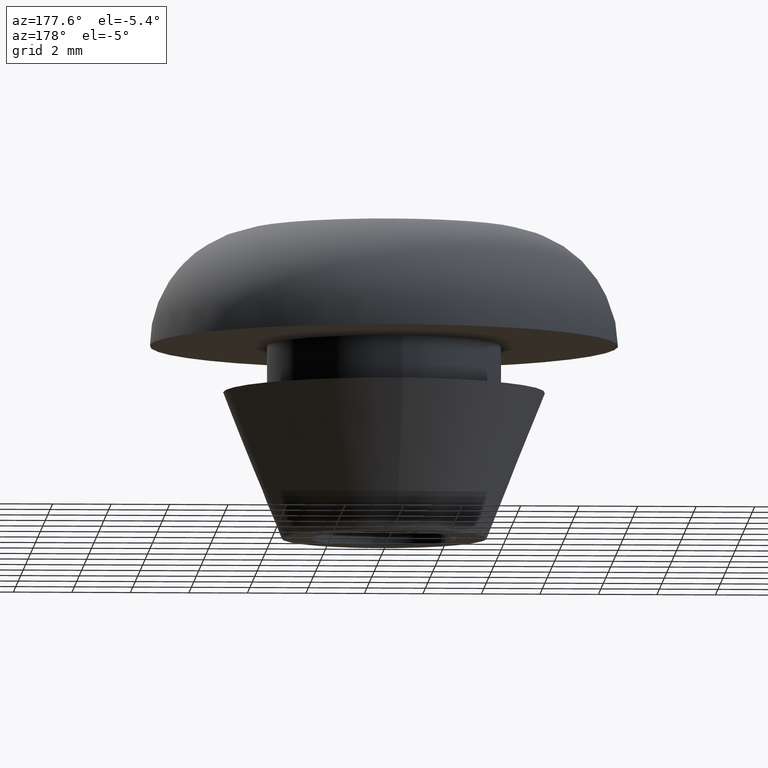
[diagram: clean part render]
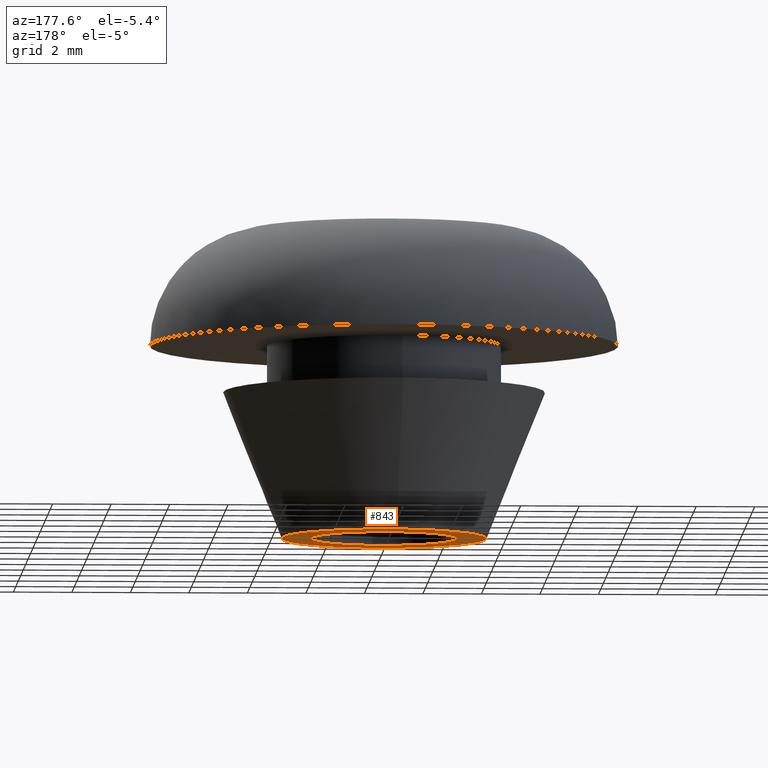
[diagram: same view with one face highlighted and labeled with its STEP entity id]
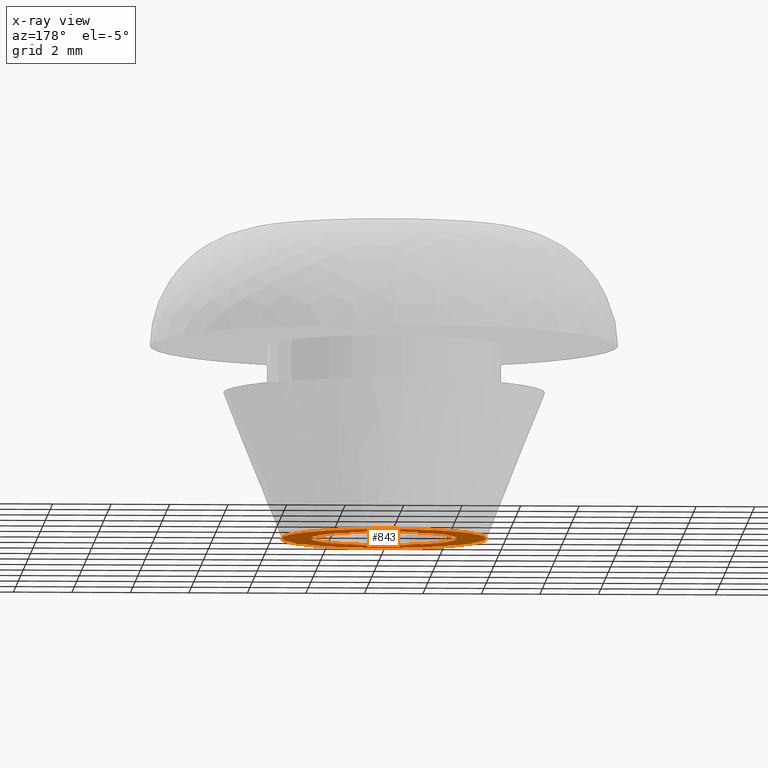
[diagram: x-ray of the same camera — body ghosted, the highlighted face saturated]
A machine part, auxiliary view. The second image highlights one B-rep face of the part: STEP entity #843.
The next image is the same camera in x-ray: the body ghosted, the highlighted face saturated — about 0% of this face is hidden behind the body in this view.
In plain terms, the highlighted face is a freeform B-spline surface patch.
Its self-contained STEP definition (entity closure, byte-faithful):
#85=CARTESIAN_POINT('',(0.295084409657038,-2.482523955811091,3.549285E-016));
#86=VERTEX_POINT('',#85);
#92=CARTESIAN_POINT('',(-2.500000000000000,0.0,0.0));
#93=VERTEX_POINT('',#92);
#94=CARTESIAN_POINT('',(0.295084409657038,-2.482523955811091,3.549285E-016));
#95=CARTESIAN_POINT('',(0.148059704415921,-2.500000000000000,0.0));
#96=CARTESIAN_POINT('',(0.0,-2.500000000000000,0.0));
#97=CARTESIAN_POINT('',(-2.500000000000000,-2.500000000000000,0.0));
#98=CARTESIAN_POINT('',(-2.500000000000000,0.0,0.0));
#106=(BOUNDED_CURVE()B_SPLINE_CURVE(2,(#94,#95,#96,#97,#98),.UNSPECIFIED.,.F.,.U.)B_SPLINE_CURVE_WITH_KNOTS((3,2,3),(0.229562553641470,0.250000000000000,0.500000000000000),.UNSPECIFIED.)CURVE()GEOMETRIC_REPRESENTATION_ITEM()RATIONAL_B_SPLINE_CURVE((0.956026911237844,0.976056042206892,1.0,0.707106781186548,1.0))REPRESENTATION_ITEM(''));
#107=EDGE_CURVE('',#86,#93,#106,.T.);
#109=CARTESIAN_POINT('',(-0.152621348847324,2.495336996054045,-1.387779E-017));
#110=VERTEX_POINT('',#109);
#111=CARTESIAN_POINT('',(-2.500000000000000,0.0,0.0));
#112=CARTESIAN_POINT('',(-2.500000000000000,2.351765167244999,0.0));
#113=CARTESIAN_POINT('',(-0.152621348847324,2.495336996054044,-1.387779E-017));
#121=(BOUNDED_CURVE()B_SPLINE_CURVE(2,(#111,#112,#113),.UNSPECIFIED.,.F.,.U.)B_SPLINE_CURVE_WITH_KNOTS((3,3),(0.500000000000000,0.739332962240559),.UNSPECIFIED.)CURVE()GEOMETRIC_REPRESENTATION_ITEM()RATIONAL_B_SPLINE_CURVE((1.0,0.719603993284816,0.976072041670182))REPRESENTATION_ITEM(''));
#122=EDGE_CURVE('',#93,#110,#121,.T.);
#196=CARTESIAN_POINT('',(2.500000000000000,0.0,0.0));
#197=VERTEX_POINT('',#196);
#198=CARTESIAN_POINT('',(-0.152621348847324,2.495336996054044,-1.387779E-017));
#199=CARTESIAN_POINT('',(-0.076381908256682,2.500000000000000,0.0));
#200=CARTESIAN_POINT('',(0.0,2.500000000000000,0.0));
#201=CARTESIAN_POINT('',(2.500000000000000,2.500000000000000,0.0));
#202=CARTESIAN_POINT('',(2.500000000000000,0.0,0.0));
#210=(BOUNDED_CURVE()B_SPLINE_CURVE(2,(#198,#199,#200,#201,#202),.UNSPECIFIED.,.F.,.U.)B_SPLINE_CURVE_WITH_KNOTS((3,2,3),(0.739332962240560,0.750000000000000,1.0),.UNSPECIFIED.)CURVE()GEOMETRIC_REPRESENTATION_ITEM()RATIONAL_B_SPLINE_CURVE((0.976072041670184,0.987502787901732,1.0,0.707106781186548,1.0))REPRESENTATION_ITEM(''));
#211=EDGE_CURVE('',#110,#197,#210,.T.);
#213=CARTESIAN_POINT('',(2.500000000000000,0.0,0.0));
#214=CARTESIAN_POINT('',(2.500000000000000,-2.220437375016478,0.0));
#215=CARTESIAN_POINT('',(0.295084409657038,-2.482523955811091,3.549285E-016));
#223=(BOUNDED_CURVE()B_SPLINE_CURVE(2,(#213,#214,#215),.UNSPECIFIED.,.F.,.U.)B_SPLINE_CURVE_WITH_KNOTS((3,3),(0.0,0.229562553641470),.UNSPECIFIED.)CURVE()GEOMETRIC_REPRESENTATION_ITEM()RATIONAL_B_SPLINE_CURVE((1.0,0.731050738979656,0.956026911237844))REPRESENTATION_ITEM(''));
#224=EDGE_CURVE('',#197,#86,#223,.T.);
#438=CARTESIAN_POINT('',(-3.500000000000000,0.0,0.0));
#439=VERTEX_POINT('',#438);
#440=CARTESIAN_POINT('',(-0.274600980489155,3.489208997300468,-0.000005312372791));
#441=VERTEX_POINT('',#440);
#442=CARTESIAN_POINT('',(-3.500000000000000,0.0,0.0));
#443=CARTESIAN_POINT('',(-3.499999916640751,3.235370951957149,-0.000002656186396));
#444=CARTESIAN_POINT('',(-0.274600980489155,3.489208997300468,-0.000005312372791));
#452=(BOUNDED_CURVE()B_SPLINE_CURVE(2,(#442,#443,#444),.UNSPECIFIED.,.F.,.U.)B_SPLINE_CURVE_WITH_KNOTS((3,3),(0.0,0.236331580075702),.UNSPECIFIED.)CURVE()GEOMETRIC_REPRESENTATION_ITEM()RATIONAL_B_SPLINE_CURVE((1.0,0.723120331217434,0.969723939348634))REPRESENTATION_ITEM(''));
#453=EDGE_CURVE('',#439,#441,#452,.T.);
#455=CARTESIAN_POINT('',(0.274600980489155,-3.489208997300468,-0.000005312372791));
#456=VERTEX_POINT('',#455);
#457=CARTESIAN_POINT('',(0.274600980489156,-3.489208997300468,-0.000005312372791));
#458=CARTESIAN_POINT('',(0.137512353718483,-3.499997920065321,-0.000005215903538));
#459=CARTESIAN_POINT('',(-0.000000160415873,-3.499997961680607,-0.000005111543859));
#460=CARTESIAN_POINT('',(-3.500000077056623,-3.499999020882365,-0.000002455357463));
#461=CARTESIAN_POINT('',(-3.500000000000000,0.0,0.0));
#469=(BOUNDED_CURVE()B_SPLINE_CURVE(2,(#457,#458,#459,#460,#461),.UNSPECIFIED.,.F.,.U.)B_SPLINE_CURVE_WITH_KNOTS((3,2,3),(0.736331580075702,0.750000000000000,1.0),.UNSPECIFIED.)CURVE()GEOMETRIC_REPRESENTATION_ITEM()RATIONAL_B_SPLINE_CURVE((0.969723939348634,0.983986449969113,1.0,0.707106781186547,1.0))REPRESENTATION_ITEM(''));
#470=EDGE_CURVE('',#456,#439,#469,.T.);
#541=CARTESIAN_POINT('',(3.500000000000000,0.0,0.0));
#542=VERTEX_POINT('',#541);
#543=CARTESIAN_POINT('',(-0.274600980489155,3.489208997300468,-0.000005312372791));
#544=CARTESIAN_POINT('',(-0.137512353718484,3.499997920065322,-0.000005215903538));
#545=CARTESIAN_POINT('',(0.000000160415872,3.499997961680607,-0.000005111543859));
#546=CARTESIAN_POINT('',(3.500000077056623,3.499999020882365,-0.000002455357463));
#547=CARTESIAN_POINT('',(3.500000000000000,0.0,0.0));
#555=(BOUNDED_CURVE()B_SPLINE_CURVE(2,(#543,#544,#545,#546,#547),.UNSPECIFIED.,.F.,.U.)B_SPLINE_CURVE_WITH_KNOTS((3,2,3),(0.236331580075702,0.250000000000000,0.500000000000000),.UNSPECIFIED.)CURVE()GEOMETRIC_REPRESENTATION_ITEM()RATIONAL_B_SPLINE_CURVE((0.969723939348634,0.983986449969114,1.0,0.707106781186547,1.0))REPRESENTATION_ITEM(''));
#556=EDGE_CURVE('',#441,#542,#555,.T.);
#590=CARTESIAN_POINT('',(3.500000000000000,0.0,0.0));
#591=CARTESIAN_POINT('',(3.499999916640751,-3.235370951957147,-0.000002656186396));
#592=CARTESIAN_POINT('',(0.274600980489156,-3.489208997300468,-0.000005312372791));
#600=(BOUNDED_CURVE()B_SPLINE_CURVE(2,(#590,#591,#592),.UNSPECIFIED.,.F.,.U.)B_SPLINE_CURVE_WITH_KNOTS((3,3),(0.500000000000000,0.736331580075702),.UNSPECIFIED.)CURVE()GEOMETRIC_REPRESENTATION_ITEM()RATIONAL_B_SPLINE_CURVE((1.0,0.723120331217434,0.969723939348634))REPRESENTATION_ITEM(''));
#601=EDGE_CURVE('',#542,#456,#600,.T.);
#826=CARTESIAN_POINT('',(3.849649986432642,-3.848579563178565,0.0));
#827=CARTESIAN_POINT('',(-3.849650174187273,-3.848579563178565,0.0));
#828=CARTESIAN_POINT('',(3.849649986432642,3.848579625763441,0.0));
#829=CARTESIAN_POINT('',(-3.849650174187273,3.848579625763441,0.0));
#830=B_SPLINE_SURFACE_WITH_KNOTS('',1,1,((#826,#828),(#827,#829)),.UNSPECIFIED.,.F.,.F.,.U.,(2,2),(2,2),(0.0,7.699300160619915),(0.0,7.697159188942006),.UNSPECIFIED.);
#831=ORIENTED_EDGE('',*,*,#453,.T.);
#832=ORIENTED_EDGE('',*,*,#556,.T.);
#833=ORIENTED_EDGE('',*,*,#601,.T.);
#834=ORIENTED_EDGE('',*,*,#470,.T.);
#835=EDGE_LOOP('',(#831,#832,#833,#834));
#836=FACE_OUTER_BOUND('',#835,.T.);
#837=ORIENTED_EDGE('',*,*,#122,.F.);
#838=ORIENTED_EDGE('',*,*,#107,.F.);
#839=ORIENTED_EDGE('',*,*,#224,.F.);
#840=ORIENTED_EDGE('',*,*,#211,.F.);
#841=EDGE_LOOP('',(#837,#838,#839,#840));
#842=FACE_BOUND('',#841,.T.);
#843=ADVANCED_FACE('',(#836,#842),#830,.T.);